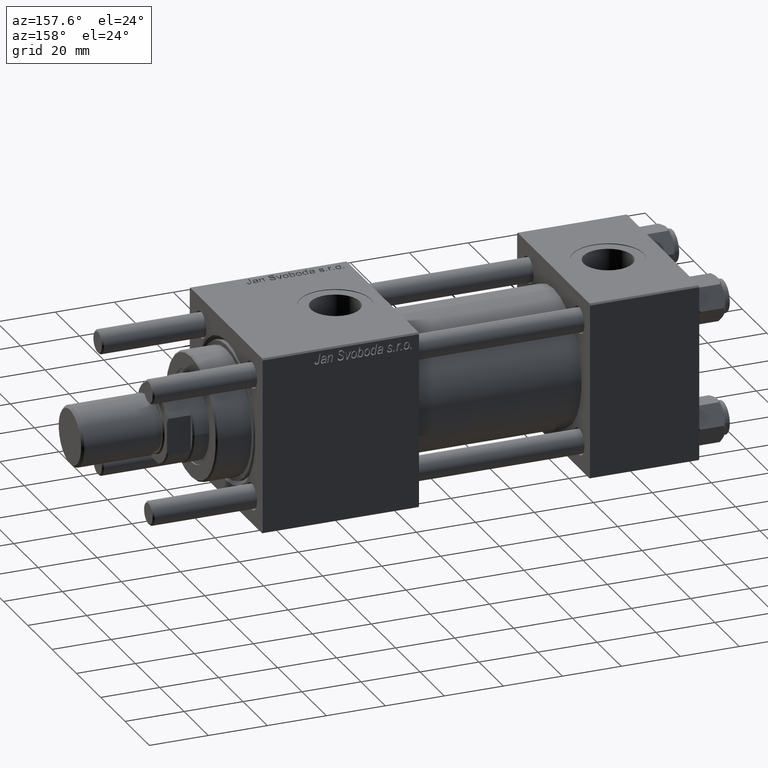
[diagram: clean part render]
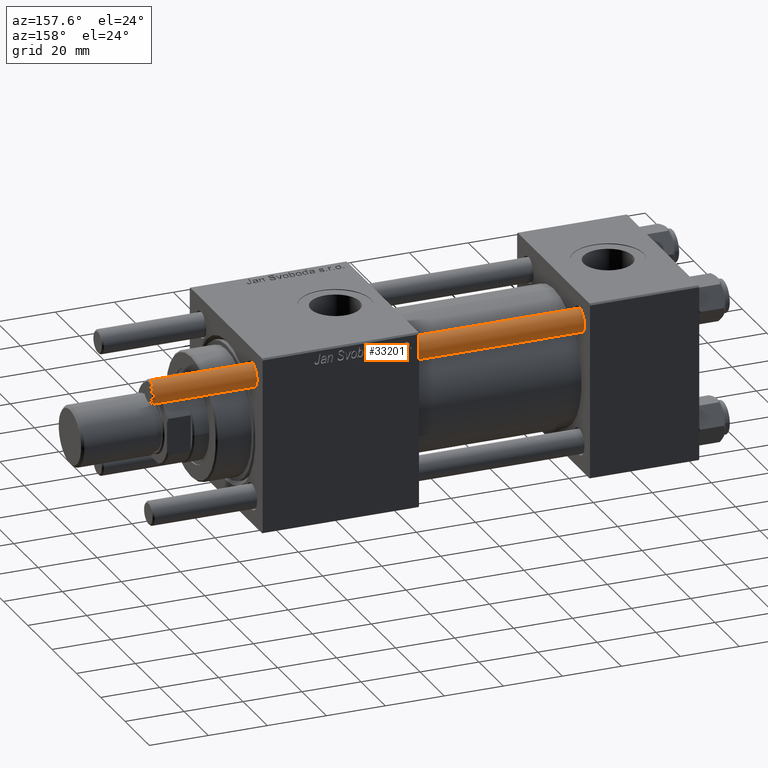
[diagram: same view with one face highlighted and labeled with its STEP entity id]
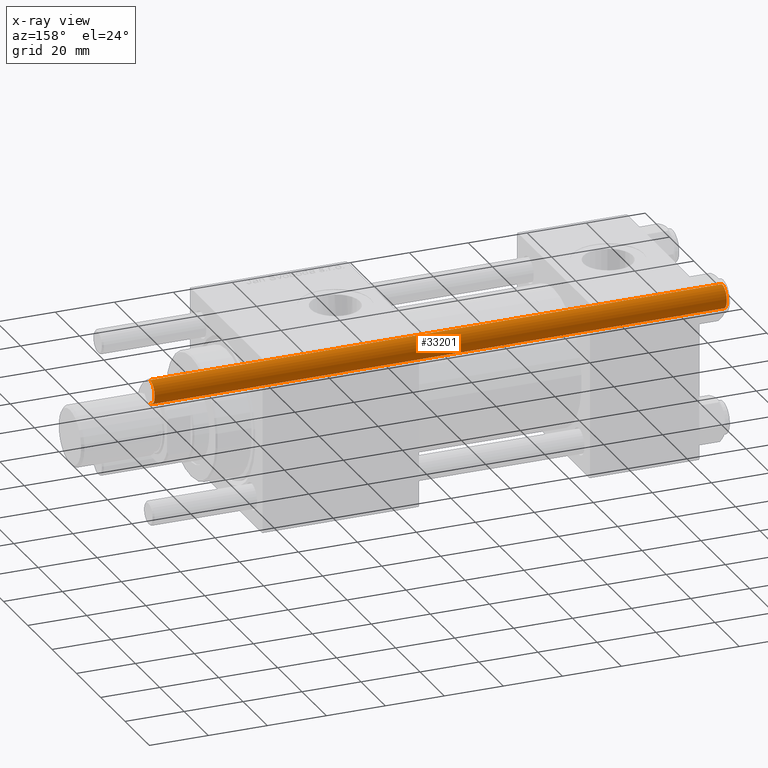
[diagram: x-ray of the same camera — body ghosted, the highlighted face saturated]
A machine part, auxiliary view. The second image highlights one B-rep face of the part: STEP entity #33201.
The next image is the same camera in x-ray: the body ghosted, the highlighted face saturated — about 0% of this face is hidden behind the body in this view.
In plain terms, the highlighted cylindrical surface (edge-blend (fillet) strip) has radius 4 mm, axis along (1, -0, -0).
Its self-contained STEP definition (entity closure, byte-faithful):
#1021 = EDGE_CURVE ( 'NONE', #44382, #56368, #57318, .T. ) ;
#3385 = ORIENTED_EDGE ( 'NONE', *, *, #1021, .T. ) ;
#4837 = DIRECTION ( 'NONE',  ( 0.000000000000000000, 0.000000000000000000, -1.000000000000000000 ) ) ;
#5951 = DIRECTION ( 'NONE',  ( -0.000000000000000000, -0.000000000000000000, -1.000000000000000000 ) ) ;
#6520 = CARTESIAN_POINT ( 'NONE',  ( 4.000000000000000000, 4.898587196589412829E-16, 194.5000000000000568 ) ) ;
#8780 = ORIENTED_EDGE ( 'NONE', *, *, #48881, .T. ) ;
#9350 = DIRECTION ( 'NONE',  ( -0.000000000000000000, -0.000000000000000000, 1.000000000000000000 ) ) ;
#9471 = CARTESIAN_POINT ( 'NONE',  ( 0.000000000000000000, 0.000000000000000000, 194.5000000000000568 ) ) ;
#12034 = DIRECTION ( 'NONE',  ( -0.000000000000000000, -0.000000000000000000, -1.000000000000000000 ) ) ;
#12995 = EDGE_CURVE ( 'NONE', #26832, #56368, #21009, .T. ) ;
#21009 = LINE ( 'NONE', #29698, #24263 ) ;
#23246 = CARTESIAN_POINT ( 'NONE',  ( 4.000000000000000000, 4.898587196589412829E-16, 0.5000000000000004441 ) ) ;
#24263 = VECTOR ( 'NONE', #12034, 1000.000000000000000 ) ;
#25498 = ORIENTED_EDGE ( 'NONE', *, *, #57128, .T. ) ;
#26725 = DIRECTION ( 'NONE',  ( 1.000000000000000000, 0.000000000000000000, 0.000000000000000000 ) ) ;
#26832 = VERTEX_POINT ( 'NONE', #47133 ) ;
#29698 = CARTESIAN_POINT ( 'NONE',  ( -4.000000000000000000, 0.000000000000000000, 195.0000000000000000 ) ) ;
#30291 = AXIS2_PLACEMENT_3D ( 'NONE', #49977, #5951, #39380 ) ;
#31467 = FACE_OUTER_BOUND ( 'NONE', #45926, .T. ) ;
#33201 = ADVANCED_FACE ( 'NONE', ( #31467 ), #48060, .T. ) ;
#34195 = AXIS2_PLACEMENT_3D ( 'NONE', #49030, #9350, #26725 ) ;
#36858 = CIRCLE ( 'NONE', #53532, 4.000000000000000000 ) ;
#37229 = CARTESIAN_POINT ( 'NONE',  ( 4.000000000000000000, 4.898587196589412829E-16, 195.0000000000000000 ) ) ;
#39380 = DIRECTION ( 'NONE',  ( -1.000000000000000000, 0.000000000000000000, 0.000000000000000000 ) ) ;
#44382 = VERTEX_POINT ( 'NONE', #23246 ) ;
#45356 = CARTESIAN_POINT ( 'NONE',  ( -4.000000000000000000, 0.000000000000000000, 0.5000000000000004441 ) ) ;
#45648 = DIRECTION ( 'NONE',  ( 1.000000000000000000, 0.000000000000000000, 0.000000000000000000 ) ) ;
#45926 = EDGE_LOOP ( 'NONE', ( #8780, #25498, #3385, #49106 ) ) ;
#46379 = VERTEX_POINT ( 'NONE', #6520 ) ;
#47133 = CARTESIAN_POINT ( 'NONE',  ( -4.000000000000000000, 0.000000000000000000, 194.5000000000000568 ) ) ;
#48060 = CYLINDRICAL_SURFACE ( 'NONE', #30291, 4.000000000000000000 ) ;
#48881 = EDGE_CURVE ( 'NONE', #26832, #46379, #36858, .T. ) ;
#49030 = CARTESIAN_POINT ( 'NONE',  ( 0.000000000000000000, 0.000000000000000000, 0.5000000000000004441 ) ) ;
#49106 = ORIENTED_EDGE ( 'NONE', *, *, #12995, .F. ) ;
#49977 = CARTESIAN_POINT ( 'NONE',  ( 0.000000000000000000, 0.000000000000000000, 195.0000000000000000 ) ) ;
#53532 = AXIS2_PLACEMENT_3D ( 'NONE', #9471, #4837, #45648 ) ;
#53788 = VECTOR ( 'NONE', #54902, 1000.000000000000000 ) ;
#54902 = DIRECTION ( 'NONE',  ( -0.000000000000000000, -0.000000000000000000, -1.000000000000000000 ) ) ;
#55766 = LINE ( 'NONE', #37229, #53788 ) ;
#56368 = VERTEX_POINT ( 'NONE', #45356 ) ;
#57128 = EDGE_CURVE ( 'NONE', #46379, #44382, #55766, .T. ) ;
#57318 = CIRCLE ( 'NONE', #34195, 4.000000000000000000 ) ;